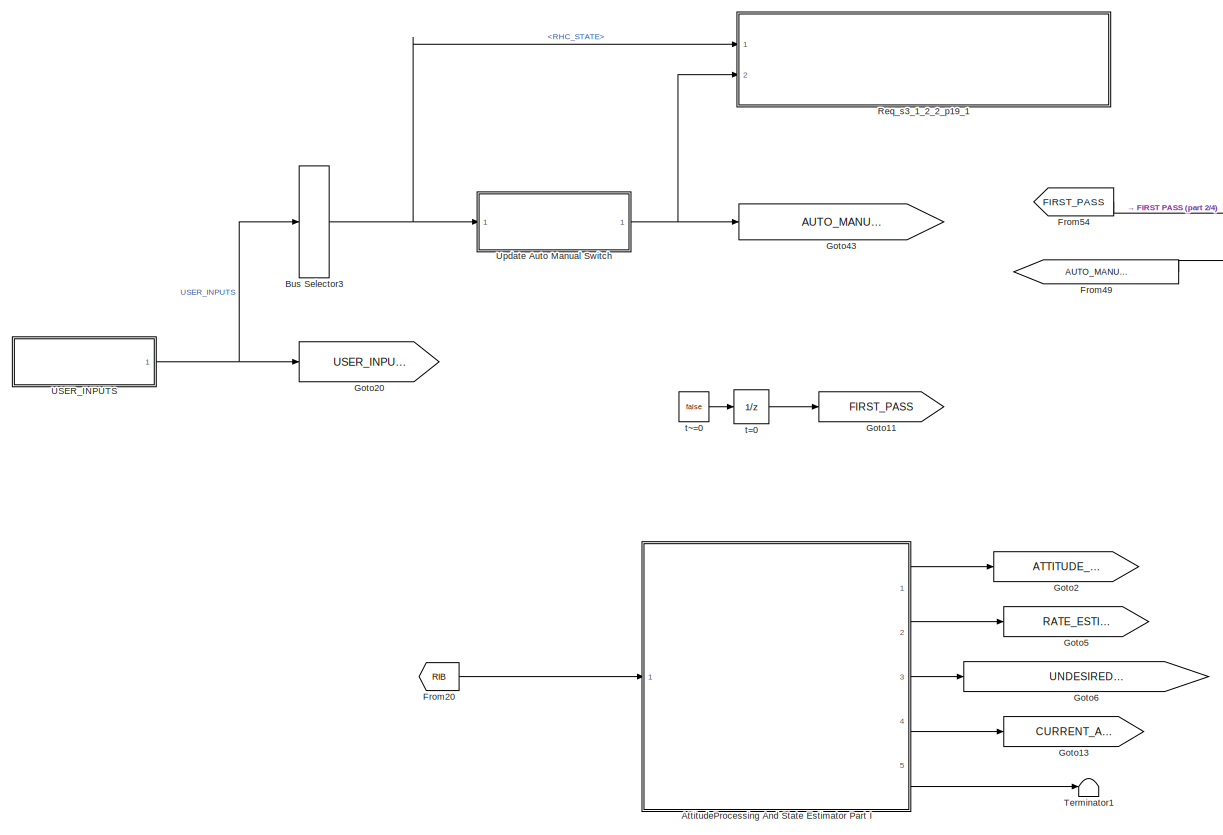
[diagram: root canvas - part 1/4, left side, full height]
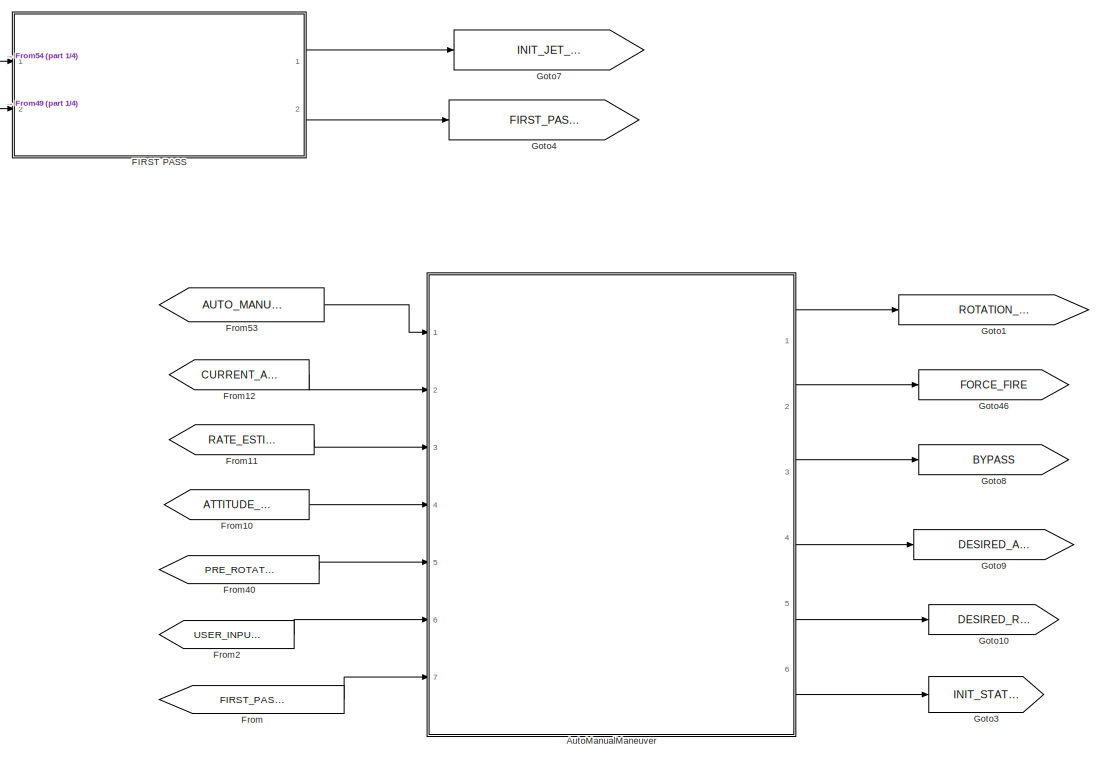
[diagram: root canvas - part 2/4, center side, full height]
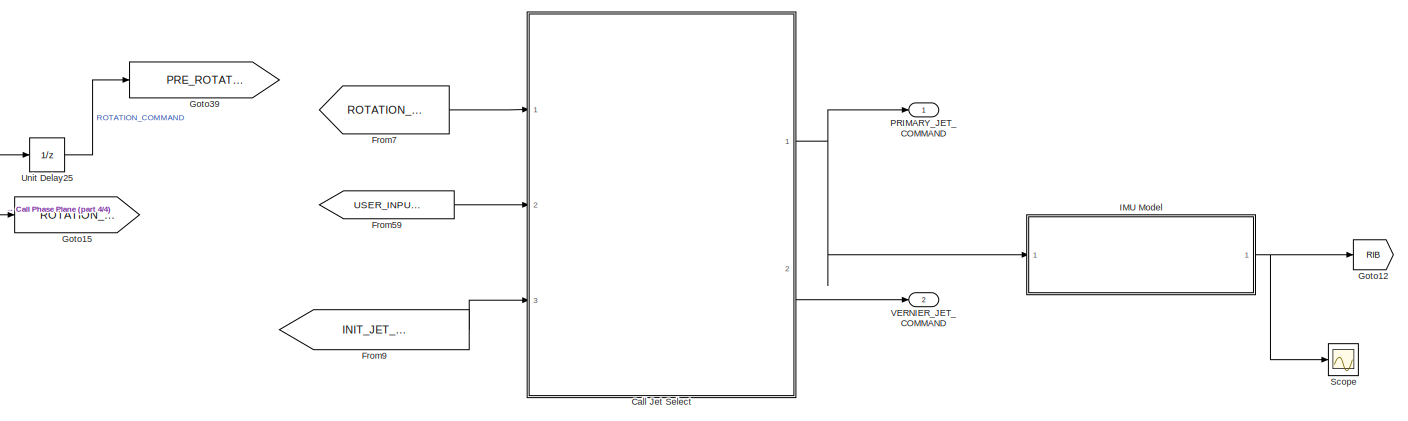
[diagram: root canvas - part 3/4, bottom right region]
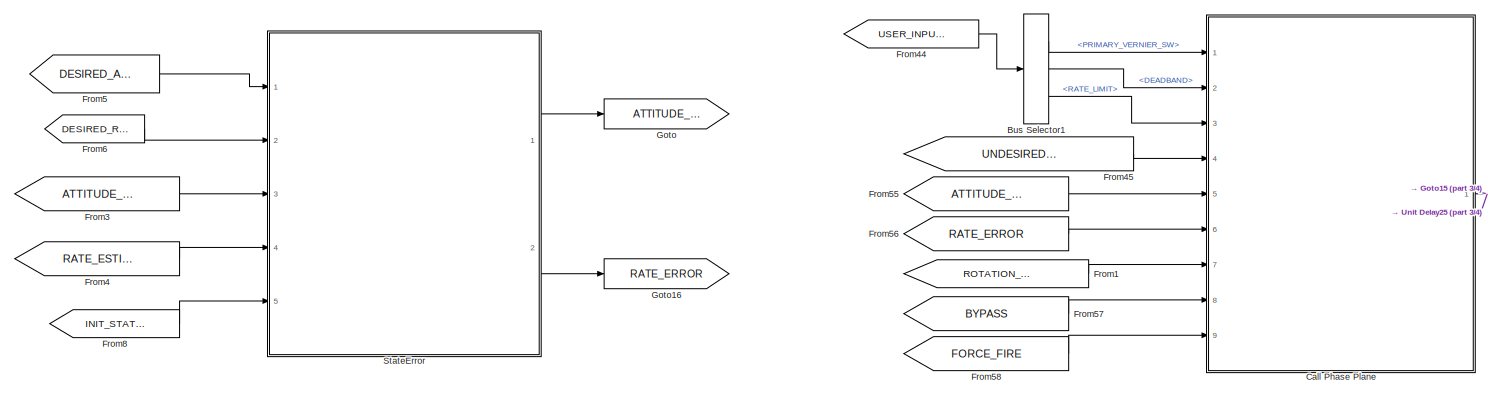
[diagram: root canvas - part 4/4, bottom center region]
MODEL slx_eddda6e7d0e3
KIND model
CONFIG AbsTol = auto
CONFIG EnableMultiTasking = off
CONFIG FixedStep = 0.08
CONFIG MaxStep = auto
CONFIG MinStep = auto
CONFIG RelTol = 1e-3
CONFIG SampleTimeConstraint = Unconstrained
CONFIG Solver = FixedStepAuto
CONFIG SolverName = FixedStepAuto
CONFIG StartTime = 0.0
CONFIG StopTime = 500
BLOCK [ModelReference] AttitudeProcessing And State Estimator Part I
  ModelNameDialog = AttitudeProcessingANDStateEstimator.slx
  ModelReferenceVersion = 1.45
  Ports = [1, 5]
  Variant = off
BLOCK [ModelReference] AutoManualManeuver
  ModelNameDialog = AutoManualManeuver.slx
  ModelReferenceVersion = 1.229
  Ports = [7, 6]
  Variant = off
BLOCK [BusSelector] Bus Selector1
  OutputAsBus = off
  OutputSignals = PRIMARY_VERNIER_SW,DEADBAND,RATE_LIMIT
  Ports = [1, 3]
BLOCK [BusSelector] Bus Selector3
  OutputAsBus = off
  OutputSignals = RHC_STATE
  Ports = [1, 1]
BLOCK [ModelReference] Call Jet Select
  ModelNameDialog = CallJetSelect.slx
  ModelReferenceVersion = 1.34
  Ports = [3, 2]
  Variant = off
BLOCK [ModelReference] Call Phase Plane
  ModelNameDialog = CallPhasePlane.slx
  ModelReferenceVersion = 1.10
  Ports = [9, 1]
  Variant = off
BLOCK [ModelReference] FIRST PASS
  ModelNameDialog = FirstPass.slx
  ModelReferenceVersion = 1.28
  Ports = [2, 2]
  Variant = off
BLOCK [From] From
  GotoTag = FIRST_PASS_INIT_STATE_ERROR
BLOCK [From] From1
  GotoTag = ROTATION_COMMAND_TMP
BLOCK [From] From10
  GotoTag = ATTITUDE_ESTIMATE
BLOCK [From] From11
  GotoTag = RATE_ESTIMATE
BLOCK [From] From12
  GotoTag = CURRENT_ATTITUDE
BLOCK [From] From2
  GotoTag = USER_INPUTS
BLOCK [From] From20
  GotoTag = RIB
BLOCK [From] From3
  GotoTag = ATTITUDE_ESTIMATE
BLOCK [From] From4
  GotoTag = RATE_ESTIMATE
BLOCK [From] From40
  GotoTag = PRE_ROTATION_COMMAND
BLOCK [From] From44
  GotoTag = USER_INPUTS
BLOCK [From] From45
  GotoTag = UNDESIRED_ACCELERATION_ESTIMATE
BLOCK [From] From49
  GotoTag = AUTO_MANUAL_SWITCH
BLOCK [From] From5
  GotoTag = DESIRED_ATTITUDE
BLOCK [From] From53
  GotoTag = AUTO_MANUAL_SWITCH
BLOCK [From] From54
  GotoTag = FIRST_PASS
BLOCK [From] From55
  GotoTag = ATTITUDE_ERROR
BLOCK [From] From56
  GotoTag = RATE_ERROR
BLOCK [From] From57
  GotoTag = BYPASS
BLOCK [From] From58
  GotoTag = FORCE_FIRE
BLOCK [From] From59
  GotoTag = USER_INPUTS
BLOCK [From] From6
  GotoTag = DESIRED_RATE
BLOCK [From] From7
  GotoTag = ROTATION_COMMAND
BLOCK [From] From8
  GotoTag = INIT_STATE_ERROR
BLOCK [From] From9
  GotoTag = INIT_JET_SELECT
BLOCK [Goto] Goto
  GotoTag = ATTITUDE_ERROR
BLOCK [Goto] Goto1
  GotoTag = ROTATION_COMMAND_TMP
BLOCK [Goto] Goto10
  GotoTag = DESIRED_RATE
BLOCK [Goto] Goto11
  GotoTag = FIRST_PASS
BLOCK [Goto] Goto12
  GotoTag = RIB
BLOCK [Goto] Goto13
  GotoTag = CURRENT_ATTITUDE
BLOCK [Goto] Goto15
  GotoTag = ROTATION_COMMAND
BLOCK [Goto] Goto16
  GotoTag = RATE_ERROR
BLOCK [Goto] Goto2
  GotoTag = ATTITUDE_ESTIMATE
BLOCK [Goto] Goto20
  GotoTag = USER_INPUTS
BLOCK [Goto] Goto3
  GotoTag = INIT_STATE_ERROR
BLOCK [Goto] Goto39
  GotoTag = PRE_ROTATION_COMMAND
BLOCK [Goto] Goto4
  GotoTag = FIRST_PASS_INIT_STATE_ERROR
BLOCK [Goto] Goto43
  GotoTag = AUTO_MANUAL_SWITCH
BLOCK [Goto] Goto46
  GotoTag = FORCE_FIRE
BLOCK [Goto] Goto5
  GotoTag = RATE_ESTIMATE
BLOCK [Goto] Goto6
  GotoTag = UNDESIRED_ACCELERATION_ESTIMATE
BLOCK [Goto] Goto7
  GotoTag = INIT_JET_SELECT
BLOCK [Goto] Goto8
  GotoTag = BYPASS
BLOCK [Goto] Goto9
  GotoTag = DESIRED_ATTITUDE
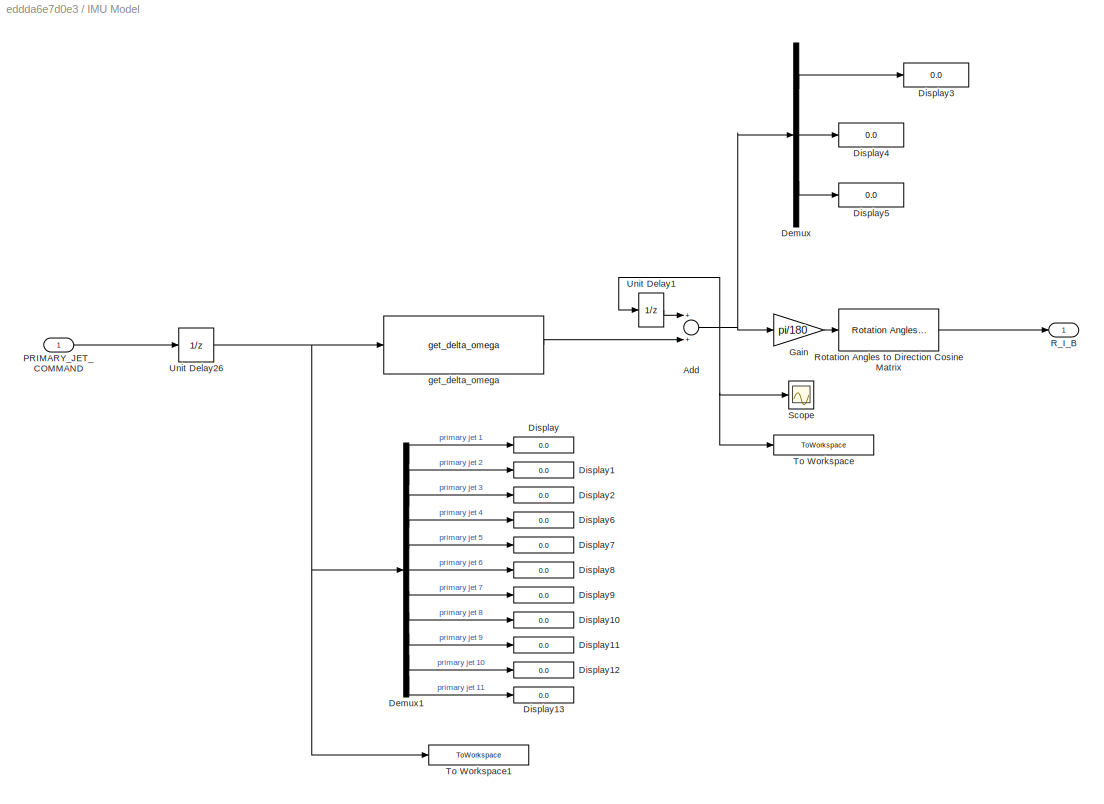
BLOCK [SubSystem] IMU Model
  Ports = [1, 1]
  RequestExecContextInheritance = off
  Variant = off
BLOCK [Sum] IMU Model/Add
  InputSameDT = off
  OutDataTypeStr = Inherit: Inherit via internal rule
  Ports = [2, 1]
  SaturateOnIntegerOverflow = off
BLOCK [Demux] IMU Model/Demux
  DisplayOption = bar
  Outputs = 3
  Ports = [1, 3]
BLOCK [Demux] IMU Model/Demux1
  DisplayOption = bar
  Outputs = 11
  Ports = [1, 11]
BLOCK [Display] IMU Model/Display
  Decimation = 1
  Ports = [1]
BLOCK [Display] IMU Model/Display1
  Decimation = 1
  Ports = [1]
BLOCK [Display] IMU Model/Display10
  Decimation = 1
  Ports = [1]
BLOCK [Display] IMU Model/Display11
  Decimation = 1
  Ports = [1]
BLOCK [Display] IMU Model/Display12
  Decimation = 1
  Ports = [1]
BLOCK [Display] IMU Model/Display13
  Decimation = 1
  Ports = [1]
BLOCK [Display] IMU Model/Display2
  Decimation = 1
  Ports = [1]
BLOCK [Display] IMU Model/Display3
  Decimation = 1
  Ports = [1]
BLOCK [Display] IMU Model/Display4
  Decimation = 1
  Ports = [1]
BLOCK [Display] IMU Model/Display5
  Decimation = 1
  Ports = [1]
BLOCK [Display] IMU Model/Display6
  Decimation = 1
  Ports = [1]
BLOCK [Display] IMU Model/Display7
  Decimation = 1
  Ports = [1]
BLOCK [Display] IMU Model/Display8
  Decimation = 1
  Ports = [1]
BLOCK [Display] IMU Model/Display9
  Decimation = 1
  Ports = [1]
BLOCK [Gain] IMU Model/Gain
  Gain = pi/180
  OutDataTypeStr = Inherit: Inherit via internal rule
  ParamDataTypeStr = Inherit: Inherit via internal rule
  SaturateOnIntegerOverflow = off
BLOCK [Inport] IMU Model/PRIMARY_JET_COMMAND
  IconDisplay = Port number
BLOCK [Outport] IMU Model/R_I_B
  IconDisplay = Port number
BLOCK [Reference] IMU Model/Rotation Angles to Direction Cosine Matrix  REF=MATLAB_Function_lib/Rotation Angles to Direction Cosine Matrix
  Ports = [1, 1]
  SourceBlock = MATLAB_Function_lib/Rotation Angles to Direction Cosine Matrix
  SourceType = SubSystem
BLOCK [Scope] IMU Model/Scope
  NumInputPorts = 1
  Ports = [1]
  ScopeSpecificationString = Simulink.scopes.TimeScopeBlockCfg('CurrentConfiguration', extmgr.ConfigurationSet(extmgr.Configuration('Core','General UI',true),extmgr.Configuration('Core','Source UI',true),extmgr.Configuration('Sources','WiredSimulink',true,'DataLoggingVariableName','ScopeData1'),extmgr.Configuration('Visuals','Time Domain',true,'SerializedDisplays',{struct('MinYLimReal','-11.21832','MaxYLimReal','57.65796','YL...<+1461ch>
BLOCK [ToWorkspace] IMU Model/To Workspace
  FixptAsFi = on
  MaxDataPoints = inf
  Ports = [1]
  SampleTime = -1
  Save2DSignal = 3-D array (concatenate along third dimension)
  SaveFormat = Timeseries
  VariableName = attitude_shuttle
BLOCK [ToWorkspace] IMU Model/To Workspace1
  FixptAsFi = on
  MaxDataPoints = inf
  Ports = [1]
  SampleTime = -1
  Save2DSignal = 3-D array (concatenate along third dimension)
  SaveFormat = Timeseries
  VariableName = jet_command
BLOCK [UnitDelay] IMU Model/Unit Delay1
  InitialCondition = [50;50;50]
  InputProcessing = Elements as channels (sample based)
  SampleTime = -1
BLOCK [UnitDelay] IMU Model/Unit Delay26
  InitialCondition = [0;0;0;0;0;0;0;0;0;0;0]
  InputProcessing = Elements as channels (sample based)
  SampleTime = -1
BLOCK [Reference] IMU Model/get_delta_omega  REF=MATLAB_Function_lib/get_delta_omega
  Ports = [1, 1]
  SourceBlock = MATLAB_Function_lib/get_delta_omega
  SourceType = SubSystem
BLOCK [Outport] PRIMARY_JET_COMMAND
  IconDisplay = Port number
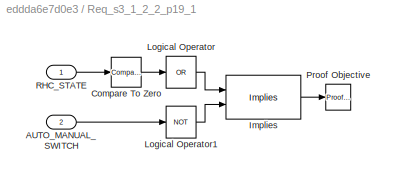
BLOCK [SubSystem] Req_s3_1_2_2_p19_1
  CopyFcn = sldvsubsys('copy');
  DisableCoverage = on
  LoadFcn = sldvsubsys('check')
  OpenFcn = open_system(gcb,'force');
  Ports = [2]
  PreSaveFcn = set_param(gcb,'SimViewingDevice','on');\nsldvsubsys('check');
  RequestExecContextInheritance = off
  SimViewingDevice = on
  Tag = VerificationSubsystem
  TreatAsAtomicUnit = on
  Variant = off
BLOCK [Inport] Req_s3_1_2_2_p19_1/AUTO_MANUAL_SWITCH
  IconDisplay = Port number
  Port = 2
BLOCK [Reference] Req_s3_1_2_2_p19_1/Compare To Zero  REF=simulink/Logic and Bit
Operations/Compare
To Zero
  Ports = [1, 1]
  SourceBlock = simulink/Logic and Bit\nOperations/Compare\nTo Zero
  SourceProductBaseCode = SL
  SourceProductName = Simulink
  SourceType = Compare To Zero
BLOCK [Reference] Req_s3_1_2_2_p19_1/Implies  REF=sldvlib/Verification Utilities/Implies
  Ports = [2, 1]
  SourceBlock = sldvlib/Verification Utilities/Implies
  SourceProductBaseCode = DV
  SourceProductName = Simulink Design Verifier
  SourceType = Design Verifier Implies
BLOCK [Logic] Req_s3_1_2_2_p19_1/Logical Operator
  AllPortsSameDT = off
  Inputs = 1
  Operator = OR
  OutDataTypeStr = boolean
  Ports = [1, 1]
BLOCK [Logic] Req_s3_1_2_2_p19_1/Logical Operator1
  AllPortsSameDT = off
  Operator = NOT
  OutDataTypeStr = boolean
  Ports = [1, 1]
BLOCK [Reference] Req_s3_1_2_2_p19_1/Proof Objective  REF=sldvlib/Objectives and Constraints/Proof Objective
  AttributesFormatString = %<intervals>
  Ports = [1]
  SourceBlock = sldvlib/Objectives and Constraints/Proof Objective
  SourceProductBaseCode = DV
  SourceProductName = Simulink Design Verifier
  SourceType = Design Verifier Proof Objective
BLOCK [Inport] Req_s3_1_2_2_p19_1/RHC_STATE
  IconDisplay = Port number
  PortDimensions = 3
BLOCK [Scope] Scope
  NumInputPorts = 1
  Ports = [1]
  ScopeSpecificationString = Simulink.scopes.TimeScopeBlockCfg('CurrentConfiguration', extmgr.ConfigurationSet(extmgr.Configuration('Core','General UI',true),extmgr.Configuration('Core','Source UI',true),extmgr.Configuration('Sources','WiredSimulink',true,'DataLoggingVariableName','ScopeData1'),extmgr.Configuration('Visuals','Time Domain',true,'SerializedDisplays',{struct('MinYLimReal','-0.69415','MaxYLimReal','1.18824','YLab...<+1580ch>
BLOCK [ModelReference] StateError
  ModelNameDialog = StateError.slx
  ModelReferenceVersion = 1.18
  Ports = [5, 2]
  Variant = off
BLOCK [Terminator] Terminator1
BLOCK [ModelReference] USER_INPUTS
  ModelNameDialog = UserInputs.slx
  ModelReferenceVersion = 1.13
  Ports = [0, 1]
  Variant = off
BLOCK [UnitDelay] Unit Delay25
  InitialCondition = [0;0;0]
  InputProcessing = Elements as channels (sample based)
  SampleTime = -1
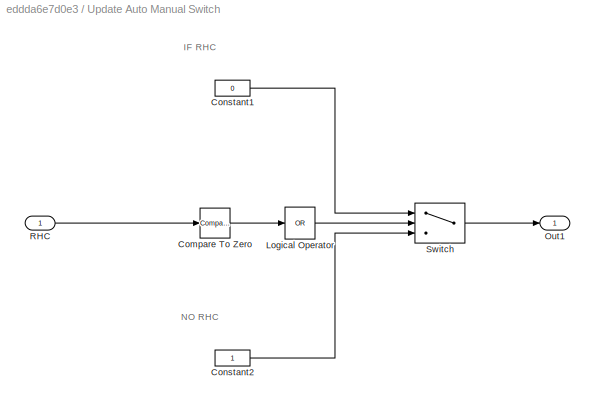
BLOCK [SubSystem] Update Auto Manual Switch
  Ports = [1, 1]
  RequestExecContextInheritance = off
  Variant = off
BLOCK [Reference] Update Auto Manual Switch/Compare To Zero  REF=simulink/Logic and Bit
Operations/Compare
To Zero
  Ports = [1, 1]
  SourceBlock = simulink/Logic and Bit\nOperations/Compare\nTo Zero
  SourceProductBaseCode = SL
  SourceProductName = Simulink
  SourceType = Compare To Zero
BLOCK [Constant] Update Auto Manual Switch/Constant1
  OutDataTypeStr = boolean
  Value = 0
BLOCK [Constant] Update Auto Manual Switch/Constant2
  OutDataTypeStr = boolean
BLOCK [Logic] Update Auto Manual Switch/Logical Operator
  AllPortsSameDT = off
  Inputs = 1
  Operator = OR
  OutDataTypeStr = boolean
  Ports = [1, 1]
BLOCK [Outport] Update Auto Manual Switch/Out1
  IconDisplay = Port number
BLOCK [Inport] Update Auto Manual Switch/RHC
  IconDisplay = Port number
BLOCK [Switch] Update Auto Manual Switch/Switch
  Criteria = u2 ~= 0
  InputSameDT = off
  SaturateOnIntegerOverflow = off
BLOCK [Outport] VERNIER_JET_COMMAND
  IconDisplay = Port number
  Port = 2
BLOCK [UnitDelay] t=0
  InitialCondition = true
  InputProcessing = Elements as channels (sample based)
  SampleTime = -1
BLOCK [Constant] t~=0
  Value = false
ANNOTATION Update Auto Manual Switch: IF RHC
ANNOTATION Update Auto Manual Switch: NO RHC
LINE AttitudeProcessing And State Estimator Part I:1 -> Goto2:1
LINE AttitudeProcessing And State Estimator Part I:2 -> Goto5:1
LINE AttitudeProcessing And State Estimator Part I:3 -> Goto6:1
LINE AttitudeProcessing And State Estimator Part I:4 -> Goto13:1
LINE AttitudeProcessing And State Estimator Part I:5 -> Terminator1:1
LINE AutoManualManeuver:1 -> Goto1:1
LINE AutoManualManeuver:2 -> Goto46:1
LINE AutoManualManeuver:3 -> Goto8:1
LINE AutoManualManeuver:4 -> Goto9:1
LINE AutoManualManeuver:5 -> Goto10:1
LINE AutoManualManeuver:6 -> Goto3:1
LINE Bus Selector1:1 -> Call Phase Plane:1
LINE Bus Selector1:2 -> Call Phase Plane:2
LINE Bus Selector1:3 -> Call Phase Plane:3
NET Bus Selector3:1 -> Req_s3_1_2_2_p19_1:1, Update Auto Manual Switch:1
NET Call Jet Select:1 -> IMU Model:1, PRIMARY_JET_COMMAND:1
LINE Call Jet Select:2 -> VERNIER_JET_COMMAND:1
NET Call Phase Plane:1 -> Goto15:1, Unit Delay25:1
LINE FIRST PASS:1 -> Goto7:1
LINE FIRST PASS:2 -> Goto4:1
LINE From10:1 -> AutoManualManeuver:4
LINE From11:1 -> AutoManualManeuver:3
LINE From12:1 -> AutoManualManeuver:2
LINE From1:1 -> Call Phase Plane:7
LINE From20:1 -> AttitudeProcessing And State Estimator Part I:1
LINE From2:1 -> AutoManualManeuver:6
LINE From3:1 -> StateError:3
LINE From40:1 -> AutoManualManeuver:5
LINE From44:1 -> Bus Selector1:1
LINE From45:1 -> Call Phase Plane:4
LINE From49:1 -> FIRST PASS:2
LINE From4:1 -> StateError:4
LINE From53:1 -> AutoManualManeuver:1
LINE From54:1 -> FIRST PASS:1
LINE From55:1 -> Call Phase Plane:5
LINE From56:1 -> Call Phase Plane:6
LINE From57:1 -> Call Phase Plane:8
LINE From58:1 -> Call Phase Plane:9
LINE From59:1 -> Call Jet Select:2
LINE From5:1 -> StateError:1
LINE From6:1 -> StateError:2
LINE From7:1 -> Call Jet Select:1
LINE From8:1 -> StateError:5
LINE From9:1 -> Call Jet Select:3
LINE From:1 -> AutoManualManeuver:7
NET IMU Model/Add:1 -> IMU Model/Demux:1, IMU Model/Gain:1, IMU Model/Scope:1, IMU Model/To Workspace:1, IMU Model/Unit Delay1:1
LINE IMU Model/Demux1:1 -> IMU Model/Display:1
LINE IMU Model/Demux1:10 -> IMU Model/Display12:1
LINE IMU Model/Demux1:11 -> IMU Model/Display13:1
LINE IMU Model/Demux1:2 -> IMU Model/Display1:1
LINE IMU Model/Demux1:3 -> IMU Model/Display2:1
LINE IMU Model/Demux1:4 -> IMU Model/Display6:1
LINE IMU Model/Demux1:5 -> IMU Model/Display7:1
LINE IMU Model/Demux1:6 -> IMU Model/Display8:1
LINE IMU Model/Demux1:7 -> IMU Model/Display9:1
LINE IMU Model/Demux1:8 -> IMU Model/Display10:1
LINE IMU Model/Demux1:9 -> IMU Model/Display11:1
LINE IMU Model/Demux:1 -> IMU Model/Display3:1
LINE IMU Model/Demux:2 -> IMU Model/Display4:1
LINE IMU Model/Demux:3 -> IMU Model/Display5:1
LINE IMU Model/Gain:1 -> IMU Model/Rotation Angles to Direction Cosine Matrix:1
LINE IMU Model/PRIMARY_JET_COMMAND:1 -> IMU Model/Unit Delay26:1
LINE IMU Model/Rotation Angles to Direction Cosine Matrix:1 -> IMU Model/R_I_B:1
LINE IMU Model/Unit Delay1:1 -> IMU Model/Add:1
NET IMU Model/Unit Delay26:1 -> IMU Model/Demux1:1, IMU Model/To Workspace1:1, IMU Model/get_delta_omega:1
LINE IMU Model/get_delta_omega:1 -> IMU Model/Add:2
NET IMU Model:1 -> Goto12:1, Scope:1
LINE StateError:1 -> Goto:1
LINE StateError:2 -> Goto16:1
NET USER_INPUTS:1 -> Bus Selector3:1, Goto20:1
LINE Unit Delay25:1 -> Goto39:1
LINE Update Auto Manual Switch/Compare To Zero:1 -> Update Auto Manual Switch/Logical Operator:1
LINE Update Auto Manual Switch/Constant1:1 -> Update Auto Manual Switch/Switch:1
LINE Update Auto Manual Switch/Constant2:1 -> Update Auto Manual Switch/Switch:3
LINE Update Auto Manual Switch/Logical Operator:1 -> Update Auto Manual Switch/Switch:2
LINE Update Auto Manual Switch/RHC:1 -> Update Auto Manual Switch/Compare To Zero:1
LINE Update Auto Manual Switch/Switch:1 -> Update Auto Manual Switch/Out1:1
NET Update Auto Manual Switch:1 -> Goto43:1, Req_s3_1_2_2_p19_1:2
LINE t=0:1 -> Goto11:1
LINE t~=0:1 -> t=0:1
note: NET lines group one-source signal fan-out (src -> all destinations, sorted); 1:1 wires keep LINE
